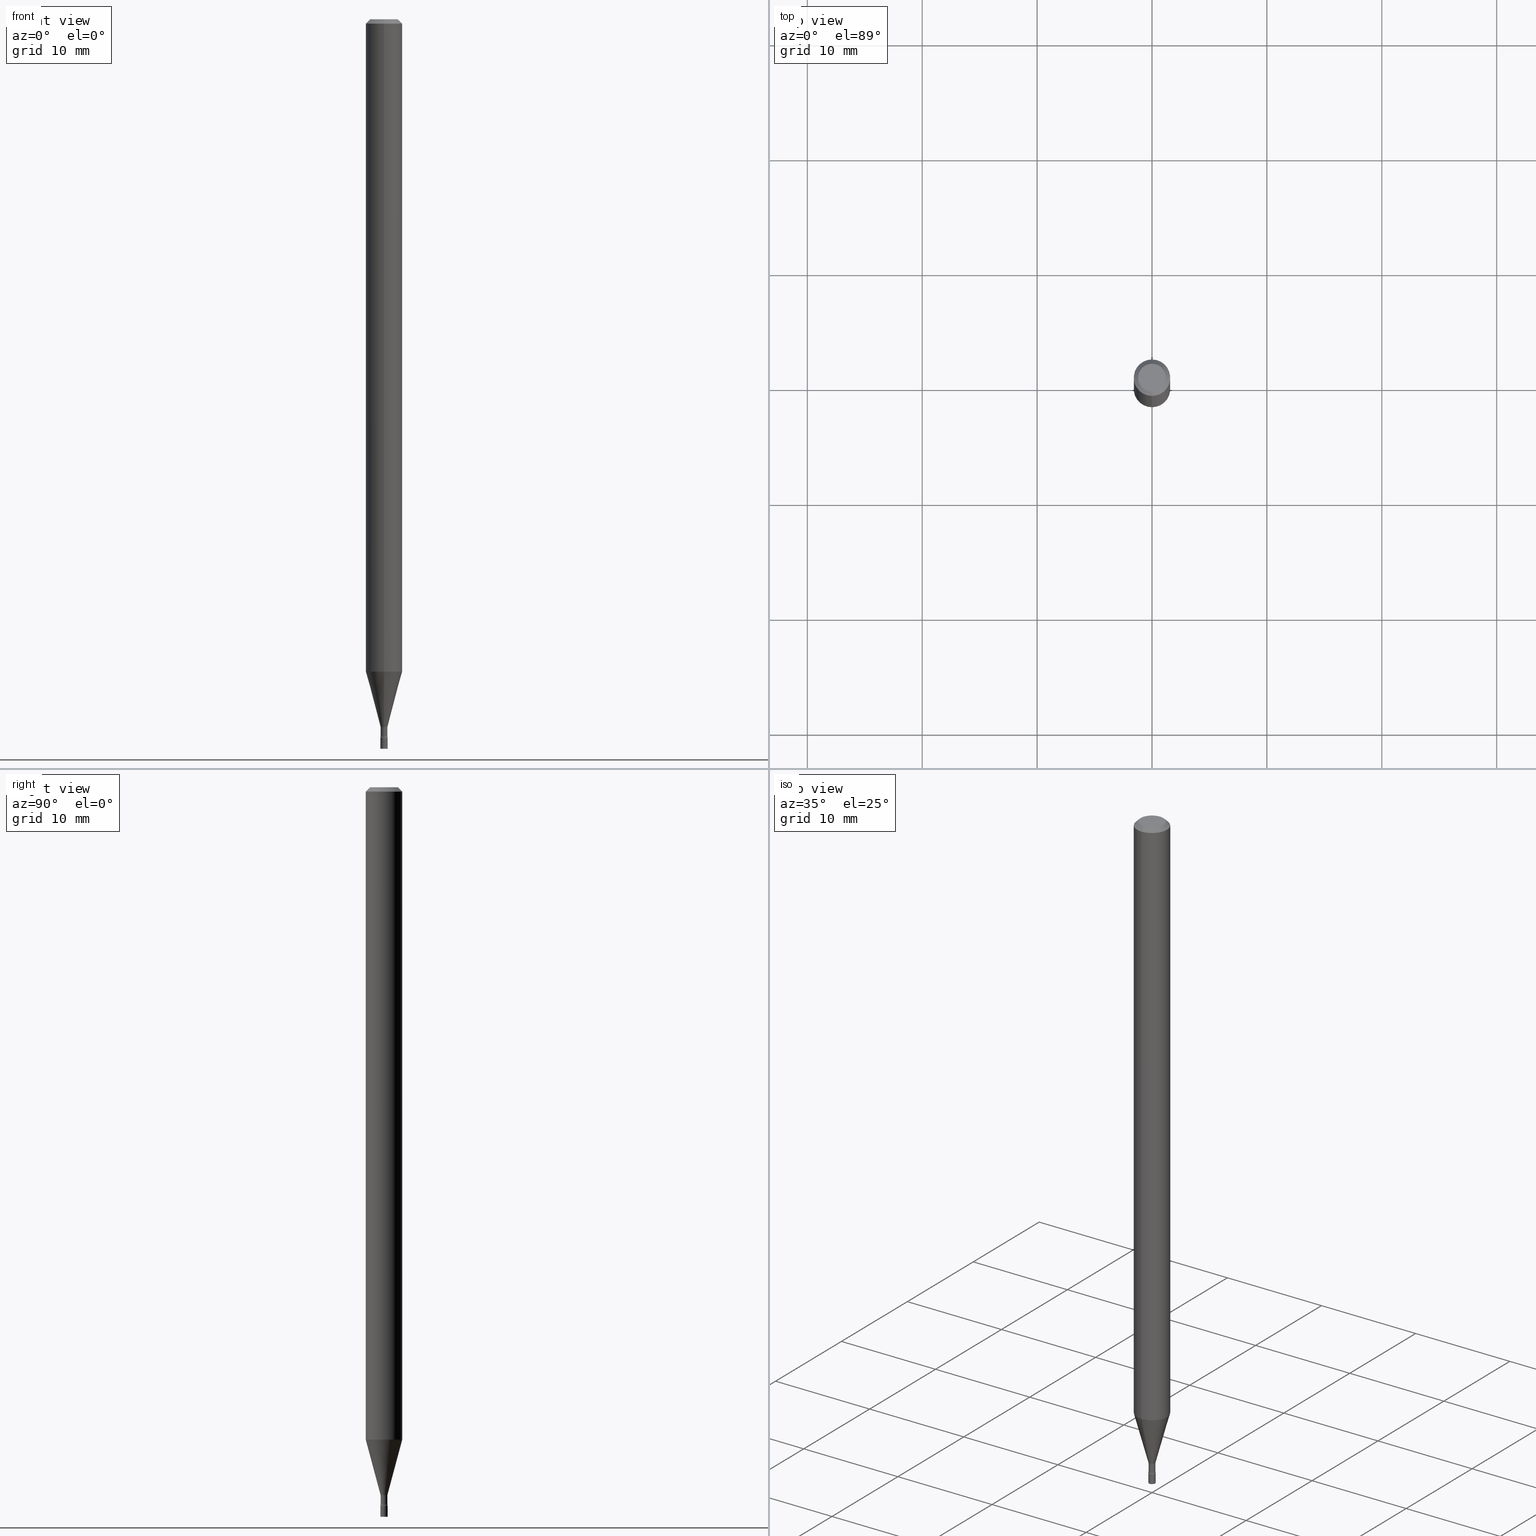
[diagram: canonical four-view strip — front | top / right | iso, engineering-drawing reading convention]
A machine part, canonical four-view strip (front | top / right | iso — engineering-drawing reading convention). The complete STEP part file that produces these views, byte-faithful:
ISO-10303-21;
HEADER;
FILE_DESCRIPTION (( 'STEP AP203' ),
    '1' );
FILE_NAME ('09620.STEP',
    '2024-03-09T00:03:12',
    ( '' ),
    ( '' ),
    'SwSTEP 2.0',
    'SolidWorks 2023',
    '' );
FILE_SCHEMA (( 'CONFIG_CONTROL_DESIGN' ));
ENDSEC;

DATA;
#1 = CARTESIAN_POINT ( 'NONE',  ( 0.000000000000000000, 0.000000000000000000, 0.000000000000000000 ) ) ;
#2 = ORIENTED_EDGE ( 'NONE', *, *, #492, .T. ) ;
#3 = EDGE_CURVE ( 'NONE', #381, #350, #460, .T. ) ;
#4 = CARTESIAN_POINT ( 'NONE',  ( 7.071895182315478193E-46, -1.009633109036832983E-31, -2.891770269013396492E-17 ) ) ;
#5 = ORGANIZATION ( 'UNSPECIFIED', 'UNSPECIFIED', '' ) ;
#6 = EDGE_LOOP ( 'NONE', ( #80, #346, #324, #134 ) ) ;
#7 = PRODUCT_RELATED_PRODUCT_CATEGORY ( 'detail', '', ( #493 ) ) ;
#8 = EDGE_CURVE ( 'NONE', #471, #378, #27, .T. ) ;
#9 = ORIENTED_EDGE ( 'NONE', *, *, #321, .F. ) ;
#10 = CARTESIAN_POINT ( 'NONE',  ( 8.712044494297056292E-17, 0.01226111260565551468, -2.423092501787273534 ) ) ;
#11 = AXIS2_PLACEMENT_3D ( 'NONE', #60, #232, #102 ) ;
#12 = ORIENTED_EDGE ( 'NONE', *, *, #180, .T. ) ;
#13 = ORIENTED_EDGE ( 'NONE', *, *, #392, .F. ) ;
#14 =( NAMED_UNIT ( * ) SI_UNIT ( $, .STERADIAN. ) SOLID_ANGLE_UNIT ( ) );
#15 = DIRECTION ( 'NONE',  ( -6.982962677686266711E-15, -1.000000000000000000, 3.491401512269146185E-15 ) ) ;
#16 = EDGE_CURVE ( 'NONE', #124, #491, #164, .T. ) ;
#17 = EDGE_LOOP ( 'NONE', ( #463, #494, #182, #71 ) ) ;
#18 = VECTOR ( 'NONE', #197, 39.37007874015748143 ) ;
#19 = DIRECTION ( 'NONE',  ( 2.438088387897960049E-29, -3.491481338843145188E-15, -1.000000000000000000 ) ) ;
#20 = DIRECTION ( 'NONE',  ( 1.000000000000000000, -6.982962677686265922E-15, 4.876176775795935793E-29 ) ) ;
#21 = SHAPE_DEFINITION_REPRESENTATION ( #122, #276 ) ;
#22 = LINE ( 'NONE', #191, #18 ) ;
#23 = APPROVAL_ROLE ( '' ) ;
#24 = EDGE_CURVE ( 'NONE', #256, #298, #22, .T. ) ;
#25 = CARTESIAN_POINT ( 'NONE',  ( 6.009290239977977822E-29, -8.579673835752435391E-15, -2.457316251501201698 ) ) ;
#26 = DIRECTION ( 'NONE',  ( 1.000000000000000000, 0.000000000000000000, 0.000000000000000000 ) ) ;
#27 = LINE ( 'NONE', #425, #322 ) ;
#28 = CIRCLE ( 'NONE', #84, 0.01175000000000004860 ) ;
#29 = DIRECTION ( 'NONE',  ( -1.000000000000000000, 6.982962677686265922E-15, -4.883557194083112340E-29 ) ) ;
#30 = AXIS2_PLACEMENT_3D ( 'NONE', #376, #370, #295 ) ;
#31 = APPROVAL ( #123, 'UNSPECIFIED' ) ;
#32 = DIRECTION ( 'NONE',  ( -6.982962677686267499E-15, -1.000000000000000000, 0.000000000000000000 ) ) ;
#33 = EDGE_CURVE ( 'NONE', #380, #298, #91, .T. ) ;
#34 = DIRECTION ( 'NONE',  ( 1.839019923739597949E-15, 0.2588190451025246253, 0.9659258262890670910 ) ) ;
#35 = CARTESIAN_POINT ( 'NONE',  ( 6.113672015462842613E-29, -8.728703347107864943E-15, -2.500000000000000000 ) ) ;
#36 = EDGE_LOOP ( 'NONE', ( #470, #263 ) ) ;
#37 = LINE ( 'NONE', #373, #429 ) ;
#38 = DIRECTION ( 'NONE',  ( 7.105427357600997914E-15, 1.000000000000000000, 0.000000000000000000 ) ) ;
#39 = VECTOR ( 'NONE', #34, 39.37007874015748854 ) ;
#40 = DIRECTION ( 'NONE',  ( -2.445468806185136597E-29, 3.491481338843145583E-15, 1.000000000000000000 ) ) ;
#41 = EDGE_CURVE ( 'NONE', #342, #378, #128, .T. ) ;
#42 = CARTESIAN_POINT ( 'NONE',  ( 8.881784197007265416E-17, 0.01249999999999139820, -2.462000000000000188 ) ) ;
#43 = ORIENTED_EDGE ( 'NONE', *, *, #205, .F. ) ;
#44 = ORIENTED_EDGE ( 'NONE', *, *, #180, .F. ) ;
#45 = CONICAL_SURFACE ( 'NONE', #144, 0.06250000000000000000, 0.7853981633974483900 ) ;
#46 = CIRCLE ( 'NONE', #30, 0.01226111260566397493 ) ;
#47 = ORIENTED_EDGE ( 'NONE', *, *, #456, .T. ) ;
#48 = ADVANCED_FACE ( 'NONE', ( #280 ), #172, .F. ) ;
#49 = ORIENTED_EDGE ( 'NONE', *, *, #24, .T. ) ;
#50 = DIRECTION ( 'NONE',  ( -2.445524548783828743E-29, 3.491401512269146579E-15, 1.000000000000000000 ) ) ;
#51 = CARTESIAN_POINT ( 'NONE',  ( -8.204981146281377387E-17, -0.01175000000000002258, 4.102396776916255134E-17 ) ) ;
#52 = DATE_TIME_ROLE ( 'classification_date' ) ;
#53 = AXIS2_PLACEMENT_3D ( 'NONE', #146, #155, #393 ) ;
#54 = AXIS2_PLACEMENT_3D ( 'NONE', #366, #247, #515 ) ;
#55 = EDGE_LOOP ( 'NONE', ( #383, #349 ) ) ;
#56 = ORIENTED_EDGE ( 'NONE', *, *, #435, .T. ) ;
#57 = DIRECTION ( 'NONE',  ( -2.445524548783828743E-29, 3.491401512269146579E-15, 1.000000000000000000 ) ) ;
#58 = ADVANCED_FACE ( 'NONE', ( #153 ), #184, .F. ) ;
#59 = ORIENTED_EDGE ( 'NONE', *, *, #321, .T. ) ;
#60 = CARTESIAN_POINT ( 'NONE',  ( -1.867942516280478063E-16, -0.02675000000000861758, -2.457316251501201698 ) ) ;
#61 = CARTESIAN_POINT ( 'NONE',  ( 5.935091136140551956E-29, -8.473737180272706087E-15, -2.426974787463811456 ) ) ;
#62 = FACE_OUTER_BOUND ( 'NONE', #249, .T. ) ;
#63 = ORIENTED_EDGE ( 'NONE', *, *, #308, .T. ) ;
#64 = AXIS2_PLACEMENT_3D ( 'NONE', #89, #255, #415 ) ;
#65 = APPROVAL_PERSON_ORGANIZATION ( #480, #31, #297 ) ;
#66 = DIRECTION ( 'NONE',  ( -1.807323732225328167E-15, -0.2588190451025179084, 0.9659258262890690894 ) ) ;
#67 = CARTESIAN_POINT ( 'NONE',  ( 0.000000000000000000, 0.000000000000000000, 0.000000000000000000 ) ) ;
#68 = ADVANCED_FACE ( 'NONE', ( #70 ), #168, .T. ) ;
#69 = PERSON_AND_ORGANIZATION_ROLE ( 'classification_officer' ) ;
#70 = FACE_OUTER_BOUND ( 'NONE', #130, .T. ) ;
#71 = ORIENTED_EDGE ( 'NONE', *, *, #475, .F. ) ;
#72 = FACE_OUTER_BOUND ( 'NONE', #177, .T. ) ;
#73 = CARTESIAN_POINT ( 'NONE',  ( -1.867942516280482500E-16, -0.02675000000000847186, -2.426974787463811456 ) ) ;
#74 = CALENDAR_DATE ( 2024, 8, 3 ) ;
#75 = AXIS2_PLACEMENT_3D ( 'NONE', #234, #76, #192 ) ;
#76 = DIRECTION ( 'NONE',  ( 1.000000000000000000, -7.105427357601001070E-15, 4.926314530948498868E-29 ) ) ;
#77 = DIRECTION ( 'NONE',  ( -4.851104656540964275E-15, -0.7071067811865500152, -0.7071067811865450192 ) ) ;
#78 = MANIFOLD_SOLID_BREP ( 'Body-Move/Copy2[2]', #331 ) ;
#79 = CARTESIAN_POINT ( 'NONE',  ( -0.01250000000000000069, 8.881784197001252816E-17, -6.148668862818633278E-31 ) ) ;
#80 = ORIENTED_EDGE ( 'NONE', *, *, #198, .F. ) ;
#81 = CARTESIAN_POINT ( 'NONE',  ( 1.900701818158871192E-16, 0.02674999999999145769, -2.457316251501201698 ) ) ;
#82 = APPROVAL_DATE_TIME ( #445, #31 ) ;
#83 = DIRECTION ( 'NONE',  ( -2.445524548783828463E-29, 3.491401512269146579E-15, 1.000000000000000000 ) ) ;
#84 = AXIS2_PLACEMENT_3D ( 'NONE', #313, #99, #266 ) ;
#85 = LOCAL_TIME ( 19, 3, 12.00000000000000000, #422 ) ;
#86 = ORIENTED_EDGE ( 'NONE', *, *, #226, .F. ) ;
#87 = CARTESIAN_POINT ( 'NONE',  ( 6.020744200827806517E-29, -8.596027056231825938E-15, -2.462000000000000188 ) ) ;
#88 = ORIENTED_EDGE ( 'NONE', *, *, #3, .F. ) ;
#89 = CARTESIAN_POINT ( 'NONE',  ( 0.000000000000000000, 0.000000000000000000, 0.000000000000000000 ) ) ;
#90 = ADVANCED_FACE ( 'NONE', ( #365 ), #245, .T. ) ;
#91 = CIRCLE ( 'NONE', #476, 0.01174999999999999829 ) ;
#92 = CIRCLE ( 'NONE', #485, 0.01500000000000002720 ) ;
#93 = AXIS2_PLACEMENT_3D ( 'NONE', #502, #193, #152 ) ;
#94 = ORIENTED_EDGE ( 'NONE', *, *, #403, .F. ) ;
#95 = EDGE_LOOP ( 'NONE', ( #94, #212, #450, #13 ) ) ;
#96 = VECTOR ( 'NONE', #517, 39.37007874015748143 ) ;
#97 = DIRECTION ( 'NONE',  ( -2.445524548783828463E-29, 3.491401512269146579E-15, 1.000000000000000000 ) ) ;
#98 = AXIS2_PLACEMENT_3D ( 'NONE', #396, #19, #354 ) ;
#99 = DIRECTION ( 'NONE',  ( -2.445524548783828743E-29, 3.491401512269146579E-15, 1.000000000000000000 ) ) ;
#100 = ORIENTED_EDGE ( 'NONE', *, *, #33, .T. ) ;
#101 = DIRECTION ( 'NONE',  ( -2.445468806185136597E-29, 3.491481338843145583E-15, 1.000000000000000000 ) ) ;
#102 = DIRECTION ( 'NONE',  ( -6.982962677686265133E-15, -1.000000000000000000, 0.000000000000000000 ) ) ;
#103 = PLANE ( 'NONE',  #379 ) ;
#104 = CC_DESIGN_PERSON_AND_ORGANIZATION_ASSIGNMENT ( #222, #69, ( #139 ) ) ;
#105 = DIRECTION ( 'NONE',  ( -6.982962677686265922E-15, -1.000000000000000000, 3.483106191921935554E-15 ) ) ;
#106 = EDGE_CURVE ( 'NONE', #381, #312, #126, .T. ) ;
#107 = CARTESIAN_POINT ( 'NONE',  ( 6.113672015462842613E-29, -8.728703347107864943E-15, -2.500000000000000000 ) ) ;
#108 = TOROIDAL_SURFACE ( 'NONE', #484, 0.02674999999999999947, 0.01500000000000002720 ) ;
#109 = DIRECTION ( 'NONE',  ( -2.445524548783828743E-29, 3.491401512269146579E-15, 1.000000000000000000 ) ) ;
#110 = VERTEX_POINT ( 'NONE', #338 ) ;
#111 = CARTESIAN_POINT ( 'NONE',  ( 3.668286823175750261E-31, -5.237102268403730666E-17, -0.01500000000000003067 ) ) ;
#112 = APPROVAL ( #202, 'UNSPECIFIED' ) ;
#113 = APPROVAL_DATE_TIME ( #329, #112 ) ;
#114 = CARTESIAN_POINT ( 'NONE',  ( 3.668286823175750261E-31, -5.237102268403730666E-17, -0.01500000000000003067 ) ) ;
#115 = DATE_AND_TIME ( #244, #355 ) ;
#116 = DIRECTION ( 'NONE',  ( -2.445524548783828743E-29, 3.491401512269146579E-15, 1.000000000000000000 ) ) ;
#117 = VECTOR ( 'NONE', #77, 39.37007874015748143 ) ;
#118 = CC_DESIGN_APPROVAL ( #31, ( #189 ) ) ;
#119 = CARTESIAN_POINT ( 'NONE',  ( 3.668286823175750261E-31, -5.237102268403730666E-17, -0.01500000000000003067 ) ) ;
#120 = DIRECTION ( 'NONE',  ( 0.000000000000000000, 0.000000000000000000, 1.000000000000000000 ) ) ;
#121 = CARTESIAN_POINT ( 'NONE',  ( 5.935091136140551956E-29, -8.473737180272706087E-15, -2.426974787463811456 ) ) ;
#122 = PRODUCT_DEFINITION_SHAPE ( 'NONE', 'NONE',  #359 ) ;
#123 = APPROVAL_STATUS ( 'not_yet_approved' ) ;
#124 = VERTEX_POINT ( 'NONE', #42 ) ;
#125 = EDGE_CURVE ( 'NONE', #452, #174, #427, .T. ) ;
#126 = LINE ( 'NONE', #291, #117 ) ;
#127 = CARTESIAN_POINT ( 'NONE',  ( 0.01250000000000000069, -8.815990380578941699E-15, -2.500000000000000000 ) ) ;
#128 = CIRCLE ( 'NONE', #371, 0.06250000000000000000 ) ;
#129 = AXIS2_PLACEMENT_3D ( 'NONE', #25, #508, #233 ) ;
#130 = EDGE_LOOP ( 'NONE', ( #455, #449, #457, #488 ) ) ;
#131 = EDGE_LOOP ( 'NONE', ( #176, #398 ) ) ;
#132 = CC_DESIGN_PERSON_AND_ORGANIZATION_ASSIGNMENT ( #412, #211, ( #189 ) ) ;
#133 = DIRECTION ( 'NONE',  ( -6.982962677686265922E-15, -1.000000000000000000, 3.483106191921935554E-15 ) ) ;
#134 = ORIENTED_EDGE ( 'NONE', *, *, #159, .F. ) ;
#135 = LINE ( 'NONE', #10, #39 ) ;
#136 = VERTEX_POINT ( 'NONE', #369 ) ;
#137 = ORIENTED_EDGE ( 'NONE', *, *, #125, .T. ) ;
#138 = AXIS2_PLACEMENT_3D ( 'NONE', #239, #386, #394 ) ;
#139 = SECURITY_CLASSIFICATION ( '', '', #352 ) ;
#140 = CC_DESIGN_DATE_AND_TIME_ASSIGNMENT ( #509, #52, ( #139 ) ) ;
#141 = ADVANCED_FACE ( 'NONE', ( #300 ), #108, .F. ) ;
#142 = ORIENTED_EDGE ( 'NONE', *, *, #384, .F. ) ;
#143 = ORIENTED_EDGE ( 'NONE', *, *, #248, .F. ) ;
#144 = AXIS2_PLACEMENT_3D ( 'NONE', #119, #299, #293 ) ;
#145 = LOCAL_TIME ( 19, 3, 12.00000000000000000, #286 ) ;
#146 = CARTESIAN_POINT ( 'NONE',  ( 6.020744200827806517E-29, -8.596027056231825938E-15, -2.462000000000000188 ) ) ;
#147 = EDGE_CURVE ( 'NONE', #312, #110, #453, .T. ) ;
#148 = CARTESIAN_POINT ( 'NONE',  ( -8.728703347101810928E-17, -0.01250000000000859104, -2.462000000000000188 ) ) ;
#149 = ORIENTED_EDGE ( 'NONE', *, *, #374, .F. ) ;
#150 = FACE_OUTER_BOUND ( 'NONE', #459, .T. ) ;
#151 = DIRECTION ( 'NONE',  ( -2.445468806185136597E-29, 3.491481338843145583E-15, 1.000000000000000000 ) ) ;
#152 = DIRECTION ( 'NONE',  ( -6.982962677686265922E-15, -1.000000000000000000, 3.491401512269146579E-15 ) ) ;
#153 = FACE_OUTER_BOUND ( 'NONE', #131, .T. ) ;
#154 = PERSON_AND_ORGANIZATION ( #385, #5 ) ;
#155 = DIRECTION ( 'NONE',  ( -2.445468806185136597E-29, 3.491481338843145583E-15, 1.000000000000000000 ) ) ;
#156 = LINE ( 'NONE', #474, #462 ) ;
#157 = CARTESIAN_POINT ( 'NONE',  ( 5.467210821039463204E-29, -7.805371709707060200E-15, -2.235598421515879952 ) ) ;
#158 = DIRECTION ( 'NONE',  ( -2.445524548783828743E-29, 3.491401512269146579E-15, 1.000000000000000000 ) ) ;
#159 = EDGE_CURVE ( 'NONE', #301, #225, #264, .T. ) ;
#160 = APPLICATION_PROTOCOL_DEFINITION ( 'international standard', 'config_control_design', 1994, #468 ) ;
#161 = CARTESIAN_POINT ( 'NONE',  ( 6.020881439105786871E-29, -8.595830523206639704E-15, -2.462000000000000188 ) ) ;
#162 = DIRECTION ( 'NONE',  ( -6.982962677686265922E-15, -1.000000000000000000, 0.000000000000000000 ) ) ;
#163 = PERSON_AND_ORGANIZATION_ROLE ( 'creator' ) ;
#164 = CIRCLE ( 'NONE', #138, 0.01250000000000000069 ) ;
#165 = AXIS2_PLACEMENT_3D ( 'NONE', #227, #387, #500 ) ;
#166 = CARTESIAN_POINT ( 'NONE',  ( -0.01250000000000000069, -8.573547359699832444E-15, -2.462000000000000188 ) ) ;
#167 = ADVANCED_FACE ( 'NONE', ( #423 ), #273, .T. ) ;
#168 = CYLINDRICAL_SURFACE ( 'NONE', #330, 0.06250000000000000000 ) ;
#169 = CARTESIAN_POINT ( 'NONE',  ( 3.668286823175750261E-31, -5.237102268403730666E-17, -0.01500000000000003067 ) ) ;
#170 = DIRECTION ( 'NONE',  ( -2.445468806185136597E-29, 3.491481338843145583E-15, 1.000000000000000000 ) ) ;
#171 = EDGE_LOOP ( 'NONE', ( #149, #314, #344, #408 ) ) ;
#172 = TOROIDAL_SURFACE ( 'NONE', #252, 0.02674999999999999947, 0.01500000000000002720 ) ;
#173 = VERTEX_POINT ( 'NONE', #317 ) ;
#174 = VERTEX_POINT ( 'NONE', #458 ) ;
#175 = EDGE_CURVE ( 'NONE', #452, #225, #432, .T. ) ;
#176 = ORIENTED_EDGE ( 'NONE', *, *, #290, .T. ) ;
#177 = EDGE_LOOP ( 'NONE', ( #59, #216 ) ) ;
#178 = ORIENTED_EDGE ( 'NONE', *, *, #384, .T. ) ;
#179 = EDGE_LOOP ( 'NONE', ( #12, #49, #495, #43 ) ) ;
#180 = EDGE_CURVE ( 'NONE', #136, #256, #28, .T. ) ;
#181 = PERSON_AND_ORGANIZATION_ROLE ( 'design_supplier' ) ;
#182 = ORIENTED_EDGE ( 'NONE', *, *, #16, .T. ) ;
#183 = DIRECTION ( 'NONE',  ( -2.445524548783828743E-29, 3.491401512269146579E-15, 1.000000000000000000 ) ) ;
#184 = PLANE ( 'NONE',  #195 ) ;
#185 = CARTESIAN_POINT ( 'NONE',  ( 6.020744200827806517E-29, -8.596027056231825938E-15, -2.462000000000000188 ) ) ;
#186 = EDGE_CURVE ( 'NONE', #298, #380, #277, .T. ) ;
#187 = UNCERTAINTY_MEASURE_WITH_UNIT (LENGTH_MEASURE( 1.000000000000000082E-05 ), #430, 'distance_accuracy_value', 'NONE');
#188 = AXIS2_PLACEMENT_3D ( 'NONE', #296, #170, #214 ) ;
#189 = PRODUCT_DEFINITION_FORMATION_WITH_SPECIFIED_SOURCE ( 'ANY', '', #493, .NOT_KNOWN. ) ;
#190 = FACE_OUTER_BOUND ( 'NONE', #55, .T. ) ;
#191 = CARTESIAN_POINT ( 'NONE',  ( 8.348877145181191995E-17, 0.01175000000000002258, -4.102396776916255134E-17 ) ) ;
#192 = DIRECTION ( 'NONE',  ( 7.105427357601000281E-15, 1.000000000000000000, 0.000000000000000000 ) ) ;
#193 = DIRECTION ( 'NONE',  ( -2.445524548783828463E-29, 3.491401512269146579E-15, 1.000000000000000000 ) ) ;
#194 = CARTESIAN_POINT ( 'NONE',  ( -3.773273898774340269E-16, -0.04749999999999999362, 1.369238691426504697E-16 ) ) ;
#195 = AXIS2_PLACEMENT_3D ( 'NONE', #320, #466, #229 ) ;
#196 = CC_DESIGN_APPROVAL ( #409, ( #139 ) ) ;
#197 = DIRECTION ( 'NONE',  ( -2.445524548783828463E-29, 3.491401512269146579E-15, 1.000000000000000000 ) ) ;
#198 = EDGE_CURVE ( 'NONE', #174, #301, #287, .T. ) ;
#199 = COORDINATED_UNIVERSAL_TIME_OFFSET ( 5, 0, .BEHIND. ) ;
#200 = DIRECTION ( 'NONE',  ( -6.982962677686265922E-15, -1.000000000000000000, 3.491401512269146579E-15 ) ) ;
#201 = DIRECTION ( 'NONE',  ( 1.000000000000000000, -7.105427357601001070E-15, 4.926314530948498868E-29 ) ) ;
#202 = APPROVAL_STATUS ( 'not_yet_approved' ) ;
#203 = DIRECTION ( 'NONE',  ( 1.000000000000000000, -6.982962677686216223E-15, 0.000000000000000000 ) ) ;
#204 = FACE_OUTER_BOUND ( 'NONE', #6, .T. ) ;
#205 = EDGE_CURVE ( 'NONE', #136, #380, #250, .T. ) ;
#206 = CARTESIAN_POINT ( 'NONE',  ( 0.000000000000000000, 0.000000000000000000, 0.000000000000000000 ) ) ;
#207 = CIRCLE ( 'NONE', #288, 0.01250000000000000069 ) ;
#208 = DIRECTION ( 'NONE',  ( -2.445524548783828743E-29, 3.491401512269146579E-15, 1.000000000000000000 ) ) ;
#209 = LOCAL_TIME ( 19, 3, 12.00000000000000000, #505 ) ;
#210 = DIRECTION ( 'NONE',  ( -6.982962677686265133E-15, -1.000000000000000000, 0.000000000000000000 ) ) ;
#211 = PERSON_AND_ORGANIZATION_ROLE ( 'creator' ) ;
#212 = ORIENTED_EDGE ( 'NONE', *, *, #226, .T. ) ;
#213 = FACE_OUTER_BOUND ( 'NONE', #481, .T. ) ;
#214 = DIRECTION ( 'NONE',  ( 1.000000000000000000, -6.982962677686267499E-15, 4.876176775795936353E-29 ) ) ;
#215 = DIRECTION ( 'NONE',  ( -2.445524548783828743E-29, 3.491401512269146579E-15, 1.000000000000000000 ) ) ;
#216 = ORIENTED_EDGE ( 'NONE', *, *, #159, .T. ) ;
#217 = EDGE_CURVE ( 'NONE', #174, #452, #207, .T. ) ;
#218 = AXIS2_PLACEMENT_3D ( 'NONE', #4, #483, #520 ) ;
#219 = CC_DESIGN_SECURITY_CLASSIFICATION ( #139, ( #189 ) ) ;
#220 = ORIENTED_EDGE ( 'NONE', *, *, #106, .T. ) ;
#221 = CIRCLE ( 'NONE', #438, 0.01250000000000000069 ) ;
#222 = PERSON_AND_ORGANIZATION ( #385, #5 ) ;
#223 = DIRECTION ( 'NONE',  ( -6.982962677686266711E-15, -1.000000000000000000, 0.000000000000000000 ) ) ;
#224 = DIRECTION ( 'NONE',  ( -6.982962677686266711E-15, -1.000000000000000000, 3.491401512269146579E-15 ) ) ;
#225 = VERTEX_POINT ( 'NONE', #278 ) ;
#226 = EDGE_CURVE ( 'NONE', #173, #298, #315, .T. ) ;
#227 = CARTESIAN_POINT ( 'NONE',  ( 6.009290239977977822E-29, -8.579673835752435391E-15, -2.457316251501201698 ) ) ;
#228 = APPROVAL_STATUS ( 'not_yet_approved' ) ;
#229 = DIRECTION ( 'NONE',  ( 6.982962677686265922E-15, 1.000000000000000000, -3.491401512269146579E-15 ) ) ;
#230 = VECTOR ( 'NONE', #348, 39.37007874015748143 ) ;
#231 =( GEOMETRIC_REPRESENTATION_CONTEXT ( 3 ) GLOBAL_UNCERTAINTY_ASSIGNED_CONTEXT ( ( #187 ) ) GLOBAL_UNIT_ASSIGNED_CONTEXT ( ( #430, #433, #14 ) ) REPRESENTATION_CONTEXT ( 'NONE', 'WORKASPACE' ) );
#232 = DIRECTION ( 'NONE',  ( -1.000000000000000000, 6.982962677686265922E-15, -4.883557194083112340E-29 ) ) ;
#233 = DIRECTION ( 'NONE',  ( -6.982962677686266711E-15, -1.000000000000000000, 3.491401512269146185E-15 ) ) ;
#234 = CARTESIAN_POINT ( 'NONE',  ( 1.900701818158861085E-16, 0.02674999999999152708, -2.426974787463811456 ) ) ;
#235 = CARTESIAN_POINT ( 'NONE',  ( 5.467210821039463204E-29, -7.805371709707060200E-15, -2.235598421515879952 ) ) ;
#236 = CYLINDRICAL_SURFACE ( 'NONE', #363, 0.01250000000000000069 ) ;
#237 = FACE_OUTER_BOUND ( 'NONE', #282, .T. ) ;
#238 = ADVANCED_FACE ( 'NONE', ( #237 ), #377, .T. ) ;
#239 = CARTESIAN_POINT ( 'NONE',  ( 6.020881439105786871E-29, -8.595830523206639704E-15, -2.462000000000000188 ) ) ;
#240 = DIRECTION ( 'NONE',  ( -6.982962677686265922E-15, -1.000000000000000000, 0.000000000000000000 ) ) ;
#241 = DIRECTION ( 'NONE',  ( 1.000000000000000000, -6.982962677686216223E-15, 0.000000000000000000 ) ) ;
#242 = AXIS2_PLACEMENT_3D ( 'NONE', #1, #208, #335 ) ;
#243 = CIRCLE ( 'NONE', #512, 0.06250000000000000000 ) ;
#244 = CALENDAR_DATE ( 2024, 8, 3 ) ;
#245 = CYLINDRICAL_SURFACE ( 'NONE', #242, 0.01175000000000002258 ) ;
#246 = ORIENTED_EDGE ( 'NONE', *, *, #392, .T. ) ;
#247 = DIRECTION ( 'NONE',  ( -2.445524548783828743E-29, 3.491401512269146579E-15, 1.000000000000000000 ) ) ;
#248 = EDGE_CURVE ( 'NONE', #378, #342, #309, .T. ) ;
#249 = EDGE_LOOP ( 'NONE', ( #496, #443, #262, #268 ) ) ;
#250 = LINE ( 'NONE', #51, #518 ) ;
#251 = MECHANICAL_CONTEXT ( 'NONE', #440, 'mechanical' ) ;
#252 = AXIS2_PLACEMENT_3D ( 'NONE', #61, #473, #15 ) ;
#253 = CIRCLE ( 'NONE', #11, 0.01499999999999999424 ) ;
#254 = CARTESIAN_POINT ( 'NONE',  ( 0.000000000000000000, 0.000000000000000000, 0.000000000000000000 ) ) ;
#255 = DIRECTION ( 'NONE',  ( -2.445524548783828743E-29, 3.491401512269146579E-15, 1.000000000000000000 ) ) ;
#256 = VERTEX_POINT ( 'NONE', #305 ) ;
#257 = CIRCLE ( 'NONE', #510, 0.01226111260566397493 ) ;
#258 = AXIS2_PLACEMENT_3D ( 'NONE', #87, #101, #467 ) ;
#259 = ORIENTED_EDGE ( 'NONE', *, *, #175, .F. ) ;
#260 = ORIENTED_EDGE ( 'NONE', *, *, #106, .F. ) ;
#261 = ADVANCED_FACE ( 'NONE', ( #479 ), #451, .T. ) ;
#262 = ORIENTED_EDGE ( 'NONE', *, *, #8, .T. ) ;
#263 = ORIENTED_EDGE ( 'NONE', *, *, #217, .F. ) ;
#264 = CIRCLE ( 'NONE', #53, 0.01250000000000000069 ) ;
#265 = VECTOR ( 'NONE', #395, 39.37007874015748143 ) ;
#266 = DIRECTION ( 'NONE',  ( -6.982962677686265133E-15, -1.000000000000000000, 0.000000000000000000 ) ) ;
#267 = ORIENTED_EDGE ( 'NONE', *, *, #8, .F. ) ;
#268 = ORIENTED_EDGE ( 'NONE', *, *, #41, .F. ) ;
#269 = DIRECTION ( 'NONE',  ( 1.000000000000000000, -6.982962677686267499E-15, 4.876176775795936353E-29 ) ) ;
#270 = ORIENTED_EDGE ( 'NONE', *, *, #186, .F. ) ;
#271 = EDGE_CURVE ( 'NONE', #173, #342, #135, .T. ) ;
#272 = DIRECTION ( 'NONE',  ( -2.438088387897960049E-29, 3.491481338843145188E-15, 1.000000000000000000 ) ) ;
#273 = CYLINDRICAL_SURFACE ( 'NONE', #497, 0.06250000000000000000 ) ;
#274 = CARTESIAN_POINT ( 'NONE',  ( 7.071895182315478193E-46, -1.009633109036832983E-31, -2.891770269013396492E-17 ) ) ;
#275 = FACE_OUTER_BOUND ( 'NONE', #503, .T. ) ;
#276 = ADVANCED_BREP_SHAPE_REPRESENTATION ( '09620', ( #431, #78, #420 ), #231 ) ;
#277 = CIRCLE ( 'NONE', #411, 0.01174999999999999829 ) ;
#278 = CARTESIAN_POINT ( 'NONE',  ( 0.01250000000000000069, -8.683314089702904272E-15, -2.462000000000000188 ) ) ;
#279 = LENGTH_MEASURE_WITH_UNIT ( LENGTH_MEASURE( 0.02539999999999999897 ), #426 );
#280 = FACE_OUTER_BOUND ( 'NONE', #304, .T. ) ;
#281 = ADVANCED_FACE ( 'NONE', ( #303 ), #45, .T. ) ;
#282 = EDGE_LOOP ( 'NONE', ( #260, #417, #178, #47 ) ) ;
#283 = DIRECTION ( 'NONE',  ( 2.445524548783828743E-29, -3.491401512269146579E-15, -1.000000000000000000 ) ) ;
#284 = DIRECTION ( 'NONE',  ( -2.445524548783828743E-29, 3.491401512269146579E-15, 1.000000000000000000 ) ) ;
#285 = DIRECTION ( 'NONE',  ( 4.937700262164548042E-15, 0.7071067811865451302, -0.7071067811865499042 ) ) ;
#286 = COORDINATED_UNIVERSAL_TIME_OFFSET ( 5, 0, .BEHIND. ) ;
#287 = LINE ( 'NONE', #79, #96 ) ;
#288 = AXIS2_PLACEMENT_3D ( 'NONE', #107, #151, #241 ) ;
#289 = AXIS2_PLACEMENT_3D ( 'NONE', #81, #201, #38 ) ;
#290 = EDGE_CURVE ( 'NONE', #350, #381, #437, .T. ) ;
#291 = CARTESIAN_POINT ( 'NONE',  ( -4.287811248607203282E-16, -0.06250000000000005551, -0.01499999999999981209 ) ) ;
#292 = DIMENSIONAL_EXPONENTS ( 1.000000000000000000, 0.000000000000000000, 0.000000000000000000, 0.000000000000000000, 0.000000000000000000, 0.000000000000000000, 0.000000000000000000 ) ;
#293 = DIRECTION ( 'NONE',  ( 6.982962677686265922E-15, 1.000000000000000000, -3.483106191921935554E-15 ) ) ;
#294 = PERSON_AND_ORGANIZATION_ROLE ( 'design_owner' ) ;
#295 = DIRECTION ( 'NONE',  ( -6.982962677686265922E-15, -1.000000000000000000, 0.000000000000000000 ) ) ;
#296 = CARTESIAN_POINT ( 'NONE',  ( 0.000000000000000000, 0.000000000000000000, 0.000000000000000000 ) ) ;
#297 = APPROVAL_ROLE ( '' ) ;
#298 = VERTEX_POINT ( 'NONE', #448 ) ;
#299 = DIRECTION ( 'NONE',  ( 2.445524548783828743E-29, -3.491401512269146579E-15, -1.000000000000000000 ) ) ;
#300 = FACE_OUTER_BOUND ( 'NONE', #95, .T. ) ;
#301 = VERTEX_POINT ( 'NONE', #166 ) ;
#302 = AXIS2_PLACEMENT_3D ( 'NONE', #326, #284, #319 ) ;
#303 = FACE_OUTER_BOUND ( 'NONE', #311, .T. ) ;
#304 = EDGE_LOOP ( 'NONE', ( #86, #405, #246, #100 ) ) ;
#305 = CARTESIAN_POINT ( 'NONE',  ( 8.615330671097242400E-17, 0.01174999999999146866, -2.457316251501201254 ) ) ;
#306 = ORIENTED_EDGE ( 'NONE', *, *, #410, .F. ) ;
#307 = CC_DESIGN_PERSON_AND_ORGANIZATION_ASSIGNMENT ( #442, #163, ( #359 ) ) ;
#308 = EDGE_CURVE ( 'NONE', #471, #173, #257, .T. ) ;
#309 = CIRCLE ( 'NONE', #446, 0.06250000000000000000 ) ;
#310 = APPROVAL_PERSON_ORGANIZATION ( #519, #112, #400 ) ;
#311 = EDGE_LOOP ( 'NONE', ( #88, #220, #399, #142 ) ) ;
#312 = VERTEX_POINT ( 'NONE', #441 ) ;
#313 = CARTESIAN_POINT ( 'NONE',  ( 6.009427217171644707E-29, -8.579477676614845561E-15, -2.457316251501201254 ) ) ;
#314 = ORIENTED_EDGE ( 'NONE', *, *, #41, .T. ) ;
#315 = CIRCLE ( 'NONE', #75, 0.01500000000000002720 ) ;
#316 = ADVANCED_FACE ( 'NONE', ( #204 ), #413, .T. ) ;
#317 = CARTESIAN_POINT ( 'NONE',  ( 2.656048273965440826E-16, 0.01226111260565551642, -2.423092501787273534 ) ) ;
#318 = APPROVAL_DATE_TIME ( #469, #409 ) ;
#319 = DIRECTION ( 'NONE',  ( -6.982962677686265133E-15, -1.000000000000000000, 0.000000000000000000 ) ) ;
#320 = CARTESIAN_POINT ( 'NONE',  ( 3.316907271900976096E-16, 0.04749999999999999362, -1.803004231778514264E-16 ) ) ;
#321 = EDGE_CURVE ( 'NONE', #225, #301, #416, .T. ) ;
#322 = VECTOR ( 'NONE', #66, 39.37007874015748143 ) ;
#323 = APPROVAL_PERSON_ORGANIZATION ( #154, #409, #23 ) ;
#324 = ORIENTED_EDGE ( 'NONE', *, *, #175, .T. ) ;
#325 = DIRECTION ( 'NONE',  ( -6.982962677686265922E-15, -1.000000000000000000, 3.491401512269146579E-15 ) ) ;
#326 = CARTESIAN_POINT ( 'NONE',  ( 6.009427217171644707E-29, -8.579477676614845561E-15, -2.457316251501201254 ) ) ;
#327 = DIRECTION ( 'NONE',  ( -6.982962677686265922E-15, -1.000000000000000000, 4.370956789862821150E-15 ) ) ;
#328 = DIRECTION ( 'NONE',  ( -2.445524548783828743E-29, 3.491401512269146579E-15, 1.000000000000000000 ) ) ;
#329 = DATE_AND_TIME ( #334, #145 ) ;
#330 = AXIS2_PLACEMENT_3D ( 'NONE', #254, #116, #200 ) ;
#331 = CLOSED_SHELL ( 'NONE', ( #141, #261, #367, #281, #68, #419, #343, #167, #238, #58, #487, #360, #90, #48 ) ) ;
#332 = CIRCLE ( 'NONE', #302, 0.01175000000000004860 ) ;
#333 = DIRECTION ( 'NONE',  ( -2.445524548783828743E-29, 3.491401512269146579E-15, 1.000000000000000000 ) ) ;
#334 = CALENDAR_DATE ( 2024, 8, 3 ) ;
#335 = DIRECTION ( 'NONE',  ( -6.982962677686265133E-15, -1.000000000000000000, 3.491401512269146579E-15 ) ) ;
#336 = ADVANCED_FACE ( 'NONE', ( #72 ), #103, .T. ) ;
#337 = CLOSED_SHELL ( 'NONE', ( #351, #336, #316, #478 ) ) ;
#338 = CARTESIAN_POINT ( 'NONE',  ( 4.440892098501175406E-16, 0.06249999999999995143, -0.01500000000000024751 ) ) ;
#339 = ORIENTED_EDGE ( 'NONE', *, *, #24, .F. ) ;
#340 = TOROIDAL_SURFACE ( 'NONE', #165, 0.02675000000000003764, 0.01499999999999998904 ) ;
#341 = ORIENTED_EDGE ( 'NONE', *, *, #198, .T. ) ;
#342 = VERTEX_POINT ( 'NONE', #362 ) ;
#343 = ADVANCED_FACE ( 'NONE', ( #62 ), #391, .T. ) ;
#344 = ORIENTED_EDGE ( 'NONE', *, *, #444, .T. ) ;
#345 = AXIS2_PLACEMENT_3D ( 'NONE', #111, #283, #513 ) ;
#346 = ORIENTED_EDGE ( 'NONE', *, *, #217, .T. ) ;
#347 = ORIENTED_EDGE ( 'NONE', *, *, #475, .T. ) ;
#348 = DIRECTION ( 'NONE',  ( -2.445468806185136877E-29, 3.491481338843145188E-15, 1.000000000000000000 ) ) ;
#349 = ORIENTED_EDGE ( 'NONE', *, *, #16, .F. ) ;
#350 = VERTEX_POINT ( 'NONE', #511 ) ;
#351 = ADVANCED_FACE ( 'NONE', ( #275 ), #236, .T. ) ;
#352 = SECURITY_CLASSIFICATION_LEVEL ( 'unclassified' ) ;
#353 = CARTESIAN_POINT ( 'NONE',  ( 5.935226422022165625E-29, -8.473543443190242052E-15, -2.426974787463811456 ) ) ;
#354 = DIRECTION ( 'NONE',  ( -1.000000000000000000, 6.982962677686265922E-15, -4.876176775795935793E-29 ) ) ;
#355 = LOCAL_TIME ( 19, 3, 12.00000000000000000, #199 ) ;
#356 = CARTESIAN_POINT ( 'NONE',  ( 0.000000000000000000, 0.000000000000000000, 0.000000000000000000 ) ) ;
#357 = PLANE ( 'NONE',  #93 ) ;
#358 = CARTESIAN_POINT ( 'NONE',  ( 5.925732197094799718E-29, -8.459988825108115607E-15, -2.423092501787273534 ) ) ;
#359 = PRODUCT_DEFINITION ( 'UNKNOWN', '', #189, #402 ) ;
#360 = ADVANCED_FACE ( 'NONE', ( #150 ), #340, .F. ) ;
#361 = DIRECTION ( 'NONE',  ( -6.982962677686266711E-15, -1.000000000000000000, 0.000000000000000000 ) ) ;
#362 = CARTESIAN_POINT ( 'NONE',  ( 4.440892098501171462E-16, 0.06249999999999219374, -2.235598421515880396 ) ) ;
#363 = AXIS2_PLACEMENT_3D ( 'NONE', #67, #464, #269 ) ;
#364 = CARTESIAN_POINT ( 'NONE',  ( 5.935226422022165625E-29, -8.473543443190242052E-15, -2.426974787463811456 ) ) ;
#365 = FACE_OUTER_BOUND ( 'NONE', #414, .T. ) ;
#366 = CARTESIAN_POINT ( 'NONE',  ( 5.925732197094799718E-29, -8.459988825108115607E-15, -2.423092501787273534 ) ) ;
#367 = ADVANCED_FACE ( 'NONE', ( #421 ), #447, .F. ) ;
#368 = CARTESIAN_POINT ( 'NONE',  ( 5.925732197094799718E-29, -8.459988825108115607E-15, -2.423092501787273534 ) ) ;
#369 = CARTESIAN_POINT ( 'NONE',  ( -8.204981146275385742E-17, -0.01175000000000862854, -2.457316251501201254 ) ) ;
#370 = DIRECTION ( 'NONE',  ( -2.445524548783828743E-29, 3.491401512269146579E-15, 1.000000000000000000 ) ) ;
#371 = AXIS2_PLACEMENT_3D ( 'NONE', #235, #507, #327 ) ;
#372 = LOCAL_TIME ( 19, 3, 12.00000000000000000, #436 ) ;
#373 = CARTESIAN_POINT ( 'NONE',  ( -4.364351673553916201E-16, -0.06250000000000000000, 2.182125945168216612E-16 ) ) ;
#374 = EDGE_CURVE ( 'NONE', #342, #110, #401, .T. ) ;
#375 = DIRECTION ( 'NONE',  ( -6.982962677686266711E-15, -1.000000000000000000, 3.491401512269146185E-15 ) ) ;
#376 = CARTESIAN_POINT ( 'NONE',  ( 5.925732197094799718E-29, -8.459988825108115607E-15, -2.423092501787273534 ) ) ;
#377 = CONICAL_SURFACE ( 'NONE', #345, 0.06250000000000000000, 0.7853981633974483900 ) ;
#378 = VERTEX_POINT ( 'NONE', #434 ) ;
#379 = AXIS2_PLACEMENT_3D ( 'NONE', #185, #272, #20 ) ;
#380 = VERTEX_POINT ( 'NONE', #397 ) ;
#381 = VERTEX_POINT ( 'NONE', #194 ) ;
#382 = AXIS2_PLACEMENT_3D ( 'NONE', #114, #333, #133 ) ;
#383 = ORIENTED_EDGE ( 'NONE', *, *, #435, .F. ) ;
#384 = EDGE_CURVE ( 'NONE', #350, #110, #156, .T. ) ;
#385 = PERSON ( 'UNSPECIFIED', 'UNSPECIFIED', 'UNSPECIFIED', ('UNSPECIFIED'), ('UNSPECIFIED'), ('UNSPECIFIED') ) ;
#386 = DIRECTION ( 'NONE',  ( -2.445524548783828743E-29, 3.491401512269146579E-15, 1.000000000000000000 ) ) ;
#387 = DIRECTION ( 'NONE',  ( -2.445524548783828743E-29, 3.491401512269146579E-15, 1.000000000000000000 ) ) ;
#388 = CALENDAR_DATE ( 2024, 8, 3 ) ;
#389 = FACE_OUTER_BOUND ( 'NONE', #36, .T. ) ;
#390 = AXIS2_PLACEMENT_3D ( 'NONE', #358, #504, #240 ) ;
#391 = CONICAL_SURFACE ( 'NONE', #390, 0.01226111260566397493, 0.2617993877991499629 ) ;
#392 = EDGE_CURVE ( 'NONE', #471, #380, #92, .T. ) ;
#393 = DIRECTION ( 'NONE',  ( 1.000000000000000000, -6.982962677686294321E-15, 0.000000000000000000 ) ) ;
#394 = DIRECTION ( 'NONE',  ( -6.982962677686265133E-15, -1.000000000000000000, 0.000000000000000000 ) ) ;
#395 = DIRECTION ( 'NONE',  ( -2.445524548783828463E-29, 3.491401512269146579E-15, 1.000000000000000000 ) ) ;
#396 = CARTESIAN_POINT ( 'NONE',  ( 8.728703347113945828E-17, 0.01249999999999127157, -2.500000000000000000 ) ) ;
#397 = CARTESIAN_POINT ( 'NONE',  ( -8.204981146275426418E-17, -0.01175000000000847242, -2.426974787463811456 ) ) ;
#398 = ORIENTED_EDGE ( 'NONE', *, *, #3, .T. ) ;
#399 = ORIENTED_EDGE ( 'NONE', *, *, #147, .T. ) ;
#400 = APPROVAL_ROLE ( '' ) ;
#401 = LINE ( 'NONE', #428, #265 ) ;
#402 = DESIGN_CONTEXT ( 'detailed design', #468, 'design' ) ;
#403 = EDGE_CURVE ( 'NONE', #173, #471, #46, .T. ) ;
#404 = PERSON_AND_ORGANIZATION ( #385, #5 ) ;
#405 = ORIENTED_EDGE ( 'NONE', *, *, #308, .F. ) ;
#406 = DIRECTION ( 'NONE',  ( -2.445524548783828743E-29, 3.491401512269146579E-15, 1.000000000000000000 ) ) ;
#407 = APPLICATION_PROTOCOL_DEFINITION ( 'international standard', 'config_control_design', 1994, #440 ) ;
#408 = ORIENTED_EDGE ( 'NONE', *, *, #456, .F. ) ;
#409 = APPROVAL ( #228, 'UNSPECIFIED' ) ;
#410 = EDGE_CURVE ( 'NONE', #256, #124, #490, .T. ) ;
#411 = AXIS2_PLACEMENT_3D ( 'NONE', #353, #57, #223 ) ;
#412 = PERSON_AND_ORGANIZATION ( #385, #5 ) ;
#413 = CYLINDRICAL_SURFACE ( 'NONE', #188, 0.01250000000000000069 ) ;
#414 = EDGE_LOOP ( 'NONE', ( #339, #2, #418, #270 ) ) ;
#415 = DIRECTION ( 'NONE',  ( -6.982962677686265133E-15, -1.000000000000000000, 3.491401512269146579E-15 ) ) ;
#416 = CIRCLE ( 'NONE', #258, 0.01250000000000000069 ) ;
#417 = ORIENTED_EDGE ( 'NONE', *, *, #290, .F. ) ;
#418 = ORIENTED_EDGE ( 'NONE', *, *, #205, .T. ) ;
#419 = ADVANCED_FACE ( 'NONE', ( #213 ), #454, .T. ) ;
#420 = AXIS2_PLACEMENT_3D ( 'NONE', #206, #120, #26 ) ;
#421 = FACE_OUTER_BOUND ( 'NONE', #17, .T. ) ;
#422 = COORDINATED_UNIVERSAL_TIME_OFFSET ( 5, 0, .BEHIND. ) ;
#423 = FACE_OUTER_BOUND ( 'NONE', #171, .T. ) ;
#424 = CARTESIAN_POINT ( 'NONE',  ( -8.561889171220087802E-17, -0.01226111260567243517, -2.423092501787273534 ) ) ;
#425 = CARTESIAN_POINT ( 'NONE',  ( -8.561889171220087802E-17, -0.01226111260567243517, -2.423092501787273534 ) ) ;
#426 =( LENGTH_UNIT ( ) NAMED_UNIT ( * ) SI_UNIT ( $, .METRE. ) );
#427 = CIRCLE ( 'NONE', #489, 0.01250000000000000069 ) ;
#428 = CARTESIAN_POINT ( 'NONE',  ( 4.440892098500625669E-16, 0.06250000000000000000, -2.182125945168216612E-16 ) ) ;
#429 = VECTOR ( 'NONE', #83, 39.37007874015748143 ) ;
#430 =( CONVERSION_BASED_UNIT ( 'INCH', #279 ) LENGTH_UNIT ( ) NAMED_UNIT ( #292 ) );
#431 = MANIFOLD_SOLID_BREP ( 'Body-Move/Copy2[1]', #337 ) ;
#432 = LINE ( 'NONE', #501, #230 ) ;
#433 =( NAMED_UNIT ( * ) PLANE_ANGLE_UNIT ( ) SI_UNIT ( $, .RADIAN. ) );
#434 = CARTESIAN_POINT ( 'NONE',  ( -4.364351673553370408E-16, -0.06250000000000781319, -2.235598421515879952 ) ) ;
#435 = EDGE_CURVE ( 'NONE', #491, #124, #221, .T. ) ;
#436 = COORDINATED_UNIVERSAL_TIME_OFFSET ( 5, 0, .BEHIND. ) ;
#437 = CIRCLE ( 'NONE', #218, 0.04749999999999999362 ) ;
#438 = AXIS2_PLACEMENT_3D ( 'NONE', #161, #406, #210 ) ;
#439 = DIRECTION ( 'NONE',  ( -6.982962677686265922E-15, -1.000000000000000000, 4.370956789862821150E-15 ) ) ;
#440 = APPLICATION_CONTEXT ( 'configuration controlled 3d designs of mechanical parts and assemblies' ) ;
#441 = CARTESIAN_POINT ( 'NONE',  ( -4.364351673553912750E-16, -0.06250000000000005551, -0.01499999999999981209 ) ) ;
#442 = PERSON_AND_ORGANIZATION ( #385, #5 ) ;
#443 = ORIENTED_EDGE ( 'NONE', *, *, #403, .T. ) ;
#444 = EDGE_CURVE ( 'NONE', #378, #312, #37, .T. ) ;
#445 = DATE_AND_TIME ( #74, #372 ) ;
#446 = AXIS2_PLACEMENT_3D ( 'NONE', #157, #328, #439 ) ;
#447 = TOROIDAL_SURFACE ( 'NONE', #129, 0.02675000000000003764, 0.01499999999999998904 ) ;
#448 = CARTESIAN_POINT ( 'NONE',  ( 8.348877145187194733E-17, 0.01174999999999152764, -2.426974787463811456 ) ) ;
#449 = ORIENTED_EDGE ( 'NONE', *, *, #374, .T. ) ;
#450 = ORIENTED_EDGE ( 'NONE', *, *, #186, .T. ) ;
#451 = CYLINDRICAL_SURFACE ( 'NONE', #64, 0.01175000000000002258 ) ;
#452 = VERTEX_POINT ( 'NONE', #127 ) ;
#453 = CIRCLE ( 'NONE', #382, 0.06250000000000000000 ) ;
#454 = CONICAL_SURFACE ( 'NONE', #54, 0.01226111260566397493, 0.2617993877991499629 ) ;
#455 = ORIENTED_EDGE ( 'NONE', *, *, #248, .T. ) ;
#456 = EDGE_CURVE ( 'NONE', #110, #312, #243, .T. ) ;
#457 = ORIENTED_EDGE ( 'NONE', *, *, #147, .F. ) ;
#458 = CARTESIAN_POINT ( 'NONE',  ( -0.01250000000000000069, -8.573547359699832444E-15, -2.500000000000000000 ) ) ;
#459 = EDGE_LOOP ( 'NONE', ( #306, #44, #347, #56 ) ) ;
#460 = CIRCLE ( 'NONE', #472, 0.04749999999999999362 ) ;
#461 = PERSON_AND_ORGANIZATION ( #385, #5 ) ;
#462 = VECTOR ( 'NONE', #285, 39.37007874015748143 ) ;
#463 = ORIENTED_EDGE ( 'NONE', *, *, #492, .F. ) ;
#464 = DIRECTION ( 'NONE',  ( -2.445468806185136597E-29, 3.491481338843145583E-15, 1.000000000000000000 ) ) ;
#465 = CALENDAR_DATE ( 2024, 8, 3 ) ;
#466 = DIRECTION ( 'NONE',  ( 2.445524548783828463E-29, -3.491401512269146579E-15, -1.000000000000000000 ) ) ;
#467 = DIRECTION ( 'NONE',  ( 1.000000000000000000, -6.982962677686294321E-15, 0.000000000000000000 ) ) ;
#468 = APPLICATION_CONTEXT ( 'configuration controlled 3d designs of mechanical parts and assemblies' ) ;
#469 = DATE_AND_TIME ( #388, #85 ) ;
#470 = ORIENTED_EDGE ( 'NONE', *, *, #125, .F. ) ;
#471 = VERTEX_POINT ( 'NONE', #424 ) ;
#472 = AXIS2_PLACEMENT_3D ( 'NONE', #274, #109, #224 ) ;
#473 = DIRECTION ( 'NONE',  ( -2.445524548783828743E-29, 3.491401512269146579E-15, 1.000000000000000000 ) ) ;
#474 = CARTESIAN_POINT ( 'NONE',  ( 4.364351673553919652E-16, 0.06249999999999995143, -0.01500000000000024751 ) ) ;
#475 = EDGE_CURVE ( 'NONE', #136, #491, #253, .T. ) ;
#476 = AXIS2_PLACEMENT_3D ( 'NONE', #364, #158, #361 ) ;
#477 = CC_DESIGN_PERSON_AND_ORGANIZATION_ASSIGNMENT ( #404, #294, ( #493 ) ) ;
#478 = ADVANCED_FACE ( 'NONE', ( #389 ), #498, .T. ) ;
#479 = FACE_OUTER_BOUND ( 'NONE', #179, .T. ) ;
#480 = PERSON_AND_ORGANIZATION ( #385, #5 ) ;
#481 = EDGE_LOOP ( 'NONE', ( #63, #486, #143, #267 ) ) ;
#482 = CC_DESIGN_PERSON_AND_ORGANIZATION_ASSIGNMENT ( #461, #181, ( #189 ) ) ;
#483 = DIRECTION ( 'NONE',  ( -2.445524548783828743E-29, 3.491401512269146579E-15, 1.000000000000000000 ) ) ;
#484 = AXIS2_PLACEMENT_3D ( 'NONE', #121, #215, #375 ) ;
#485 = AXIS2_PLACEMENT_3D ( 'NONE', #73, #29, #32 ) ;
#486 = ORIENTED_EDGE ( 'NONE', *, *, #271, .T. ) ;
#487 = ADVANCED_FACE ( 'NONE', ( #190 ), #357, .F. ) ;
#488 = ORIENTED_EDGE ( 'NONE', *, *, #444, .F. ) ;
#489 = AXIS2_PLACEMENT_3D ( 'NONE', #35, #40, #203 ) ;
#490 = CIRCLE ( 'NONE', #289, 0.01499999999999999424 ) ;
#491 = VERTEX_POINT ( 'NONE', #148 ) ;
#492 = EDGE_CURVE ( 'NONE', #256, #136, #332, .T. ) ;
#493 = PRODUCT ( '09620', '09620', '', ( #251 ) ) ;
#494 = ORIENTED_EDGE ( 'NONE', *, *, #410, .T. ) ;
#495 = ORIENTED_EDGE ( 'NONE', *, *, #33, .F. ) ;
#496 = ORIENTED_EDGE ( 'NONE', *, *, #271, .F. ) ;
#497 = AXIS2_PLACEMENT_3D ( 'NONE', #356, #183, #325 ) ;
#498 = PLANE ( 'NONE',  #98 ) ;
#499 = CC_DESIGN_APPROVAL ( #112, ( #359 ) ) ;
#500 = DIRECTION ( 'NONE',  ( -6.982962677686266711E-15, -1.000000000000000000, 3.491401512269146185E-15 ) ) ;
#501 = CARTESIAN_POINT ( 'NONE',  ( 0.01250000000000000069, -8.728703347107834621E-17, 6.095220969744920617E-31 ) ) ;
#502 = CARTESIAN_POINT ( 'NONE',  ( 8.728703347113853383E-17, 0.01249999999999140514, -2.462000000000000188 ) ) ;
#503 = EDGE_LOOP ( 'NONE', ( #137, #341, #9, #259 ) ) ;
#504 = DIRECTION ( 'NONE',  ( -2.445524548783828743E-29, 3.491401512269146579E-15, 1.000000000000000000 ) ) ;
#505 = COORDINATED_UNIVERSAL_TIME_OFFSET ( 5, 0, .BEHIND. ) ;
#506 = CC_DESIGN_DATE_AND_TIME_ASSIGNMENT ( #115, #514, ( #359 ) ) ;
#507 = DIRECTION ( 'NONE',  ( -2.445524548783828743E-29, 3.491401512269146579E-15, 1.000000000000000000 ) ) ;
#508 = DIRECTION ( 'NONE',  ( -2.445524548783828743E-29, 3.491401512269146579E-15, 1.000000000000000000 ) ) ;
#509 = DATE_AND_TIME ( #465, #209 ) ;
#510 = AXIS2_PLACEMENT_3D ( 'NONE', #368, #516, #162 ) ;
#511 = CARTESIAN_POINT ( 'NONE',  ( 3.840629472727447874E-16, 0.04749999999999999362, -1.947592745229184119E-16 ) ) ;
#512 = AXIS2_PLACEMENT_3D ( 'NONE', #169, #50, #105 ) ;
#513 = DIRECTION ( 'NONE',  ( 6.982962677686265922E-15, 1.000000000000000000, -3.483106191921935554E-15 ) ) ;
#514 = DATE_TIME_ROLE ( 'creation_date' ) ;
#515 = DIRECTION ( 'NONE',  ( -6.982962677686265922E-15, -1.000000000000000000, 0.000000000000000000 ) ) ;
#516 = DIRECTION ( 'NONE',  ( -2.445524548783828743E-29, 3.491401512269146579E-15, 1.000000000000000000 ) ) ;
#517 = DIRECTION ( 'NONE',  ( -2.445468806185136877E-29, 3.491481338843145188E-15, 1.000000000000000000 ) ) ;
#518 = VECTOR ( 'NONE', #97, 39.37007874015748143 ) ;
#519 = PERSON_AND_ORGANIZATION ( #385, #5 ) ;
#520 = DIRECTION ( 'NONE',  ( -6.982962677686266711E-15, -1.000000000000000000, 3.491401512269146579E-15 ) ) ;
ENDSEC;
END-ISO-10303-21;
